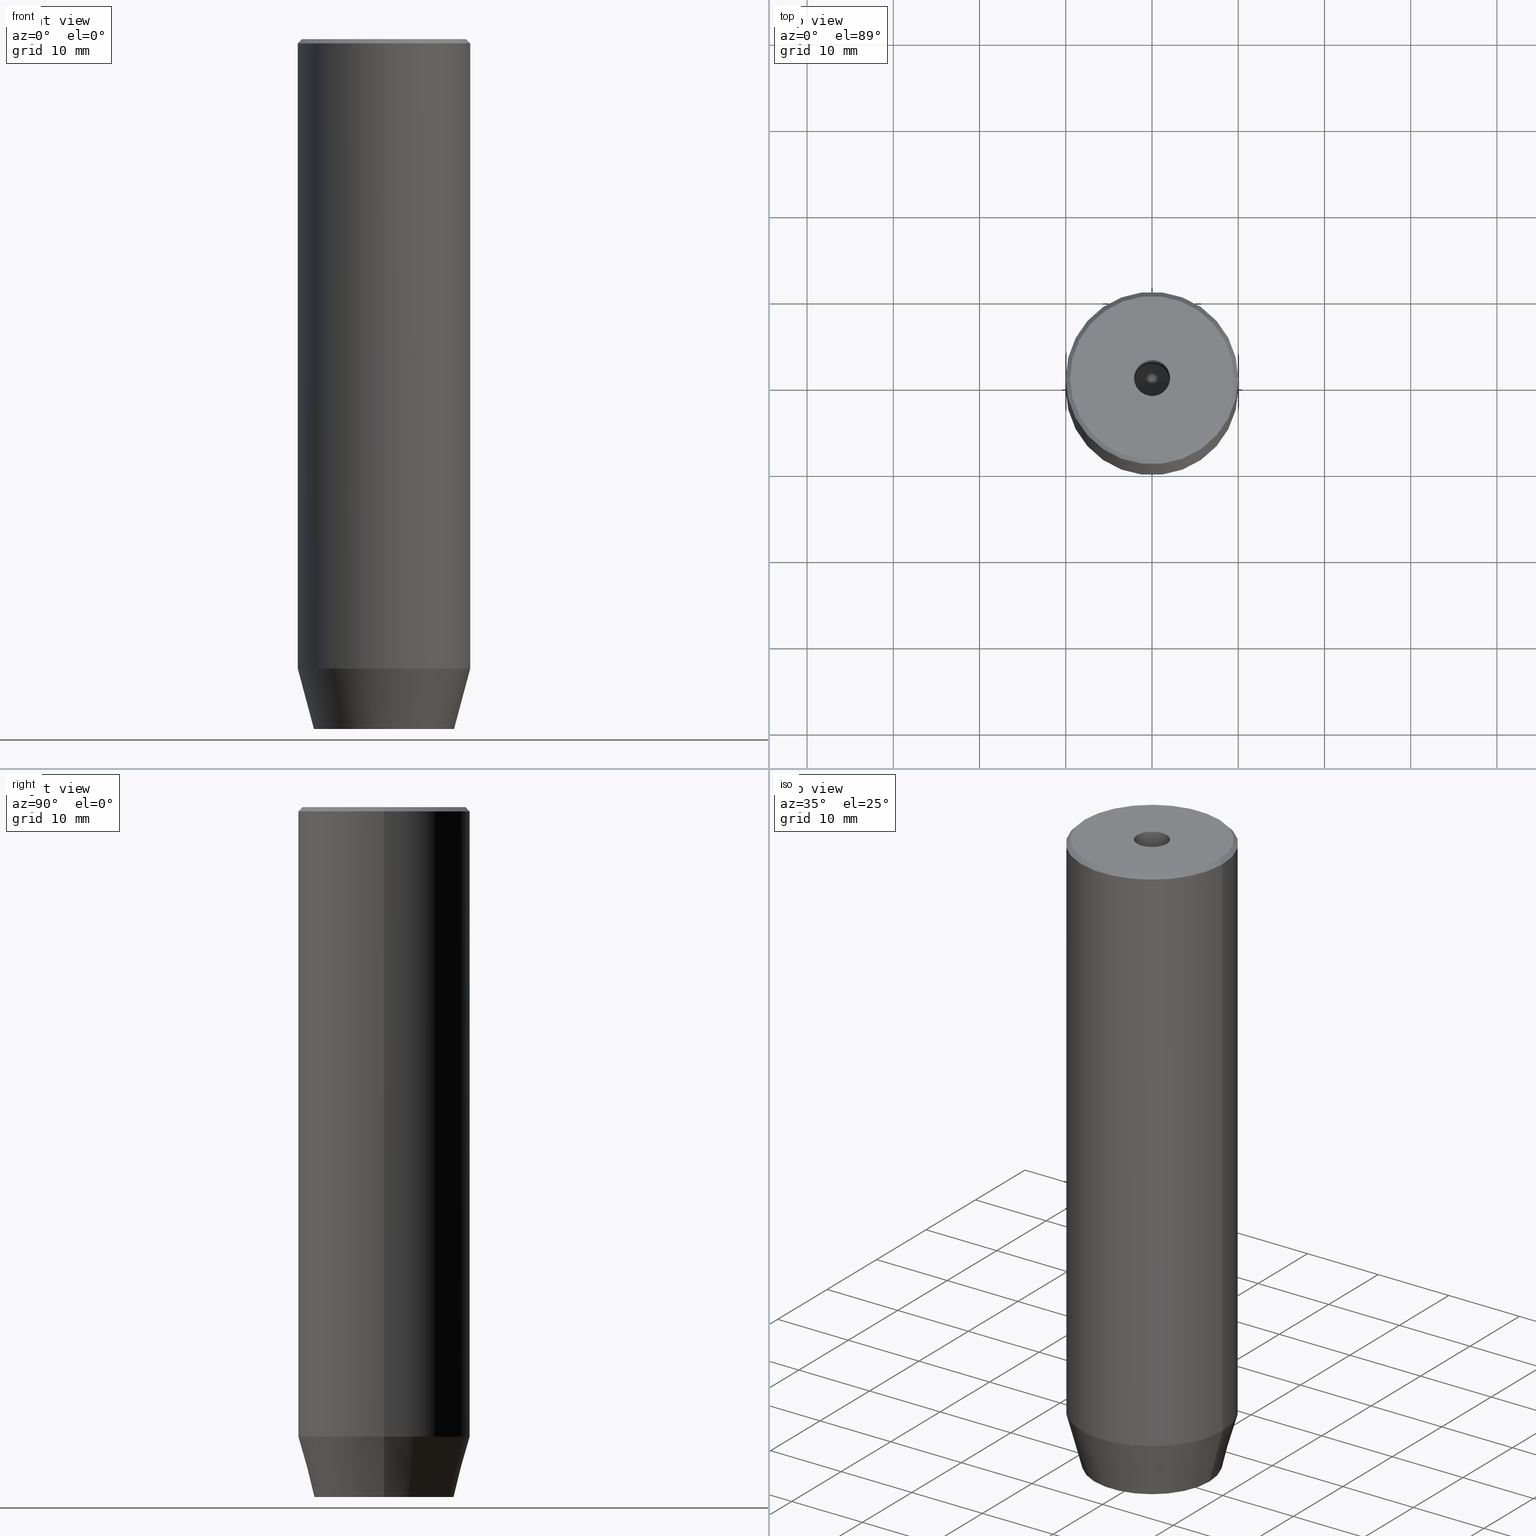
[diagram: canonical four-view strip — front | top / right | iso, engineering-drawing reading convention]
A machine part, canonical four-view strip (front | top / right | iso — engineering-drawing reading convention). The complete STEP part file that produces these views, byte-faithful:
ISO-10303-21;
HEADER;
FILE_DESCRIPTION (( 'STEP AP203' ),
    '1' );
FILE_NAME ('8880.STEP',
    '2024-01-02T19:05:57',
    ( '' ),
    ( '' ),
    'SwSTEP 2.0',
    'SolidWorks 2019',
    '' );
FILE_SCHEMA (( 'CONFIG_CONTROL_DESIGN' ));
ENDSEC;

DATA;
#1 = LINE ( 'NONE', #104, #474 ) ;
#2 = CARTESIAN_POINT ( 'NONE',  ( 0.000000000000000000, 0.000000000000000000, 0.000000000000000000 ) ) ;
#3 = VECTOR ( 'NONE', #266, 1000.000000000000000 ) ;
#4 = DIRECTION ( 'NONE',  ( -0.8660254037844384856, 0.5000000000000002220, 0.000000000000000000 ) ) ;
#5 = LINE ( 'NONE', #93, #3 ) ;
#6 = ORIENTED_EDGE ( 'NONE', *, *, #559, .F. ) ;
#7 = CARTESIAN_POINT ( 'NONE',  ( -10.00000000000000000, 1.224646799147353256E-15, -73.00000000000001421 ) ) ;
#8 = ORIENTED_EDGE ( 'NONE', *, *, #314, .T. ) ;
#9 = CC_DESIGN_DATE_AND_TIME_ASSIGNMENT ( #488, #39, ( #209 ) ) ;
#10 = CARTESIAN_POINT ( 'NONE',  ( 0.000000000000000000, 0.000000000000000000, -0.4999999999999987232 ) ) ;
#11 = ORGANIZATION ( 'NEUR�EN�', 'NEUR�EN�', '' ) ;
#12 = ORIENTED_EDGE ( 'NONE', *, *, #251, .T. ) ;
#13 = PLANE ( 'NONE',  #579 ) ;
#14 = CARTESIAN_POINT ( 'NONE',  ( -2.000000000000000888, -3.464101615137754386, -77.20000000000001705 ) ) ;
#15 = CC_DESIGN_PERSON_AND_ORGANIZATION_ASSIGNMENT ( #220, #407, ( #201 ) ) ;
#16 = CARTESIAN_POINT ( 'NONE',  ( -4.000000000000000000, 0.000000000000000000, -77.20000000000001705 ) ) ;
#17 = DATE_AND_TIME ( #460, #449 ) ;
#18 = DIRECTION ( 'NONE',  ( 0.8660254037844387076, 0.5000000000000001110, 0.000000000000000000 ) ) ;
#19 = EDGE_LOOP ( 'NONE', ( #538, #181, #503, #264 ) ) ;
#20 = LINE ( 'NONE', #279, #419 ) ;
#21 = PERSON_AND_ORGANIZATION ( #242, #11 ) ;
#22 = SECURITY_CLASSIFICATION_LEVEL ( 'unclassified' ) ;
#23 = CARTESIAN_POINT ( 'NONE',  ( 10.00000000000000000, 0.000000000000000000, 0.000000000000000000 ) ) ;
#24 = EDGE_CURVE ( 'NONE', #156, #398, #34, .T. ) ;
#25 = PERSON_AND_ORGANIZATION_ROLE ( 'creator' ) ;
#26 = DIRECTION ( 'NONE',  ( -0.000000000000000000, -0.000000000000000000, 1.000000000000000000 ) ) ;
#27 = AXIS2_PLACEMENT_3D ( 'NONE', #131, #547, #167 ) ;
#28 = DIRECTION ( 'NONE',  ( -0.000000000000000000, -0.000000000000000000, 1.000000000000000000 ) ) ;
#29 = ADVANCED_FACE ( 'NONE', ( #479 ), #123, .T. ) ;
#30 = ORIENTED_EDGE ( 'NONE', *, *, #369, .F. ) ;
#31 = ADVANCED_FACE ( 'NONE', ( #530 ), #290, .F. ) ;
#32 = VERTEX_POINT ( 'NONE', #435 ) ;
#33 = EDGE_CURVE ( 'NONE', #274, #35, #428, .T. ) ;
#34 = CIRCLE ( 'NONE', #71, 10.00000000000000000 ) ;
#35 = VERTEX_POINT ( 'NONE', #295 ) ;
#36 = CALENDAR_DATE ( 2024, 2, 1 ) ;
#37 = CARTESIAN_POINT ( 'NONE',  ( 0.000000000000000000, 0.000000000000000000, -25.00000000000000000 ) ) ;
#38 = CARTESIAN_POINT ( 'NONE',  ( -4.000000000000000000, -2.309401076758503368, -77.20000000000001705 ) ) ;
#39 = DATE_TIME_ROLE ( 'classification_date' ) ;
#40 = FACE_OUTER_BOUND ( 'NONE', #341, .T. ) ;
#41 = CC_DESIGN_APPROVAL ( #544, ( #209 ) ) ;
#42 = DIRECTION ( 'NONE',  ( -0.000000000000000000, -0.000000000000000000, 1.000000000000000000 ) ) ;
#43 = CARTESIAN_POINT ( 'NONE',  ( 4.336808689942017736E-16, -4.618802153517006737, -77.20000000000001705 ) ) ;
#44 = FACE_OUTER_BOUND ( 'NONE', #432, .T. ) ;
#45 = CALENDAR_DATE ( 2024, 2, 1 ) ;
#46 = FACE_OUTER_BOUND ( 'NONE', #233, .T. ) ;
#47 = CARTESIAN_POINT ( 'NONE',  ( 10.00000000000000000, 0.000000000000000000, -73.00000000000001421 ) ) ;
#48 = ORIENTED_EDGE ( 'NONE', *, *, #323, .T. ) ;
#49 = VECTOR ( 'NONE', #4, 1000.000000000000114 ) ;
#50 = LINE ( 'NONE', #43, #103 ) ;
#51 = LINE ( 'NONE', #548, #293 ) ;
#52 = CARTESIAN_POINT ( 'NONE',  ( -2.000000000000000000, 3.464101615137754830, -77.20000000000001705 ) ) ;
#53 = PERSON_AND_ORGANIZATION_ROLE ( 'creator' ) ;
#54 = ADVANCED_FACE ( 'NONE', ( #476 ), #452, .F. ) ;
#55 = EDGE_LOOP ( 'NONE', ( #383, #402, #76, #507 ) ) ;
#56 = PERSON_AND_ORGANIZATION_ROLE ( 'design_owner' ) ;
#57 = CARTESIAN_POINT ( 'NONE',  ( -2.099999999999995648, 2.571758278209436040E-16, -25.00000000000000000 ) ) ;
#58 = VERTEX_POINT ( 'NONE', #483 ) ;
#59 = ADVANCED_FACE ( 'NONE', ( #301 ), #491, .T. ) ;
#60 = FACE_OUTER_BOUND ( 'NONE', #144, .T. ) ;
#61 = CARTESIAN_POINT ( 'NONE',  ( 4.000000000000000000, 0.000000000000000000, -77.20000000000001705 ) ) ;
#62 = CARTESIAN_POINT ( 'NONE',  ( -4.000000000000000000, 0.000000000000000000, -77.20000000000001705 ) ) ;
#63 = AXIS2_PLACEMENT_3D ( 'NONE', #529, #475, #468 ) ;
#64 = AXIS2_PLACEMENT_3D ( 'NONE', #354, #490, #405 ) ;
#65 = CC_DESIGN_PERSON_AND_ORGANIZATION_ASSIGNMENT ( #540, #484, ( #209 ) ) ;
#66 = VERTEX_POINT ( 'NONE', #439 ) ;
#67 = DIRECTION ( 'NONE',  ( -0.8660254037844384856, -0.5000000000000002220, 0.000000000000000000 ) ) ;
#68 = ORIENTED_EDGE ( 'NONE', *, *, #334, .F. ) ;
#69 = FACE_OUTER_BOUND ( 'NONE', #311, .T. ) ;
#70 = EDGE_LOOP ( 'NONE', ( #501, #406, #365, #85 ) ) ;
#71 = AXIS2_PLACEMENT_3D ( 'NONE', #125, #130, #390 ) ;
#72 = EDGE_LOOP ( 'NONE', ( #229, #237, #477, #321, #344, #152 ) ) ;
#73 = LINE ( 'NONE', #147, #543 ) ;
#74 = DIRECTION ( 'NONE',  ( 0.000000000000000000, 1.000000000000000000, 0.000000000000000000 ) ) ;
#75 = CARTESIAN_POINT ( 'NONE',  ( -4.000000000000000000, -2.309401076758503368, -77.20000000000001705 ) ) ;
#76 = ORIENTED_EDGE ( 'NONE', *, *, #467, .T. ) ;
#77 = APPROVAL_ROLE ( '' ) ;
#78 = CARTESIAN_POINT ( 'NONE',  ( 0.000000000000000000, 0.000000000000000000, -25.00000000000000000 ) ) ;
#79 = EDGE_CURVE ( 'NONE', #463, #272, #583, .T. ) ;
#80 = CARTESIAN_POINT ( 'NONE',  ( 0.000000000000000000, 0.000000000000000000, -1.990051048614449116E-16 ) ) ;
#81 = CYLINDRICAL_SURFACE ( 'NONE', #545, 2.099999999999996980 ) ;
#82 = ORIENTED_EDGE ( 'NONE', *, *, #109, .F. ) ;
#83 = DIRECTION ( 'NONE',  ( -0.8660254037844385966, 0.5000000000000001110, 0.000000000000000000 ) ) ;
#84 = APPROVAL_PERSON_ORGANIZATION ( #278, #382, #77 ) ;
#85 = ORIENTED_EDGE ( 'NONE', *, *, #571, .T. ) ;
#86 = DIRECTION ( 'NONE',  ( -1.000000000000000000, 0.000000000000000000, -0.000000000000000000 ) ) ;
#87 = CARTESIAN_POINT ( 'NONE',  ( 0.000000000000000000, 0.000000000000000000, -25.00000000000000000 ) ) ;
#88 = EDGE_LOOP ( 'NONE', ( #328, #106, #517 ) ) ;
#89 = EDGE_CURVE ( 'NONE', #409, #325, #537, .T. ) ;
#90 = ADVANCED_FACE ( 'NONE', ( #69 ), #368, .F. ) ;
#91 = CARTESIAN_POINT ( 'NONE',  ( 0.000000000000000000, 0.000000000000000000, -73.00000000000001421 ) ) ;
#92 = CIRCLE ( 'NONE', #221, 10.00000000000000000 ) ;
#93 = CARTESIAN_POINT ( 'NONE',  ( 0.000000000000000000, 4.618802153517006737, -77.20000000000001705 ) ) ;
#94 = CC_DESIGN_APPROVAL ( #150, ( #201 ) ) ;
#95 = EDGE_LOOP ( 'NONE', ( #319, #257, #318, #68, #6, #404 ) ) ;
#96 = DIRECTION ( 'NONE',  ( 0.000000000000000000, -1.000000000000000000, 0.000000000000000000 ) ) ;
#97 = CARTESIAN_POINT ( 'NONE',  ( 0.000000000000000000, 0.000000000000000000, 0.000000000000000000 ) ) ;
#98 = VECTOR ( 'NONE', #515, 1000.000000000000000 ) ;
#99 = EDGE_CURVE ( 'NONE', #161, #214, #143, .T. ) ;
#100 = EDGE_LOOP ( 'NONE', ( #241, #565, #30, #151 ) ) ;
#101 = DIRECTION ( 'NONE',  ( -0.000000000000000000, -0.000000000000000000, -1.000000000000000000 ) ) ;
#102 = MECHANICAL_CONTEXT ( 'NONE', #339, 'mechanical' ) ;
#103 = VECTOR ( 'NONE', #101, 1000.000000000000000 ) ;
#104 = CARTESIAN_POINT ( 'NONE',  ( 4.000000000000000000, 0.000000000000000000, -80.00000000000001421 ) ) ;
#105 = EDGE_CURVE ( 'NONE', #32, #379, #364, .T. ) ;
#106 = ORIENTED_EDGE ( 'NONE', *, *, #427, .T. ) ;
#107 = DIRECTION ( 'NONE',  ( 1.000000000000000000, 0.000000000000000000, 0.000000000000000000 ) ) ;
#108 = FACE_OUTER_BOUND ( 'NONE', #204, .T. ) ;
#109 = EDGE_CURVE ( 'NONE', #489, #32, #20, .T. ) ;
#110 = CARTESIAN_POINT ( 'NONE',  ( 4.000000000000000000, 0.000000000000000000, -77.20000000000001705 ) ) ;
#111 = AXIS2_PLACEMENT_3D ( 'NONE', #573, #120, #373 ) ;
#112 = VECTOR ( 'NONE', #219, 1000.000000000000114 ) ;
#113 = VECTOR ( 'NONE', #478, 1000.000000000000000 ) ;
#114 = ORIENTED_EDGE ( 'NONE', *, *, #142, .F. ) ;
#115 = EDGE_CURVE ( 'NONE', #453, #58, #324, .T. ) ;
#116 = CARTESIAN_POINT ( 'NONE',  ( -2.000000000000000888, -3.464101615137754386, -77.20000000000001705 ) ) ;
#117 = VECTOR ( 'NONE', #165, 999.9999999999998863 ) ;
#118 = ADVANCED_FACE ( 'NONE', ( #561 ), #415, .F. ) ;
#119 = DATE_TIME_ROLE ( 'creation_date' ) ;
#120 = DIRECTION ( 'NONE',  ( 0.000000000000000000, 0.000000000000000000, -1.000000000000000000 ) ) ;
#121 = DIRECTION ( 'NONE',  ( 1.000000000000000000, 0.000000000000000000, 0.000000000000000000 ) ) ;
#122 = ADVANCED_FACE ( 'NONE', ( #380 ), #13, .T. ) ;
#123 = CYLINDRICAL_SURFACE ( 'NONE', #174, 10.00000000000000000 ) ;
#124 = DIRECTION ( 'NONE',  ( -0.8571673007021108903, 1.049727191138616847E-16, 0.5150380749100565980 ) ) ;
#125 = CARTESIAN_POINT ( 'NONE',  ( 0.000000000000000000, 0.000000000000000000, -73.00000000000001421 ) ) ;
#126 = CIRCLE ( 'NONE', #111, 10.00000000000000000 ) ;
#127 = ORIENTED_EDGE ( 'NONE', *, *, #571, .F. ) ;
#128 = AXIS2_PLACEMENT_3D ( 'NONE', #508, #516, #121 ) ;
#129 = DIRECTION ( 'NONE',  ( -0.000000000000000000, -0.000000000000000000, 1.000000000000000000 ) ) ;
#130 = DIRECTION ( 'NONE',  ( -0.000000000000000000, -0.000000000000000000, 1.000000000000000000 ) ) ;
#131 = CARTESIAN_POINT ( 'NONE',  ( 0.000000000000000000, 0.000000000000000000, 0.000000000000000000 ) ) ;
#132 = DIRECTION ( 'NONE',  ( 0.8571673007021108903, 0.000000000000000000, 0.5150380749100565980 ) ) ;
#133 = CARTESIAN_POINT ( 'NONE',  ( -9.500000000000015987, 0.000000000000000000, 0.000000000000000000 ) ) ;
#134 = VECTOR ( 'NONE', #570, 1000.000000000000000 ) ;
#135 = ORIENTED_EDGE ( 'NONE', *, *, #256, .F. ) ;
#136 = PRODUCT_RELATED_PRODUCT_CATEGORY ( 'detail', '', ( #533 ) ) ;
#137 = EDGE_LOOP ( 'NONE', ( #444, #564, #526, #581 ) ) ;
#138 = AXIS2_PLACEMENT_3D ( 'NONE', #116, #226, #566 ) ;
#139 = DIRECTION ( 'NONE',  ( 0.8660254037844385966, -0.5000000000000001110, 0.000000000000000000 ) ) ;
#140 = DIRECTION ( 'NONE',  ( 0.2588190451025206840, 0.000000000000000000, 0.9659258262890683122 ) ) ;
#141 = ORIENTED_EDGE ( 'NONE', *, *, #185, .F. ) ;
#142 = EDGE_CURVE ( 'NONE', #379, #161, #188, .T. ) ;
#143 = LINE ( 'NONE', #376, #281 ) ;
#144 = EDGE_LOOP ( 'NONE', ( #560, #178, #205, #381 ) ) ;
#145 = CARTESIAN_POINT ( 'NONE',  ( 0.000000000000000000, 0.000000000000000000, -77.20000000000001705 ) ) ;
#146 = VECTOR ( 'NONE', #208, 1000.000000000000000 ) ;
#147 = CARTESIAN_POINT ( 'NONE',  ( 4.000000000000000000, -2.309401076758502480, -77.20000000000001705 ) ) ;
#148 = DIRECTION ( 'NONE',  ( 0.8660254037844384856, 0.5000000000000002220, 0.000000000000000000 ) ) ;
#149 = ORIENTED_EDGE ( 'NONE', *, *, #289, .T. ) ;
#150 = APPROVAL ( #196, 'NEUR�EN�' ) ;
#151 = ORIENTED_EDGE ( 'NONE', *, *, #323, .F. ) ;
#152 = ORIENTED_EDGE ( 'NONE', *, *, #154, .T. ) ;
#153 = APPROVAL_DATE_TIME ( #386, #150 ) ;
#154 = EDGE_CURVE ( 'NONE', #463, #489, #276, .T. ) ;
#155 = LINE ( 'NONE', #567, #134 ) ;
#156 = VERTEX_POINT ( 'NONE', #230 ) ;
#157 = CARTESIAN_POINT ( 'NONE',  ( -4.000000000000000000, 2.309401076758503368, -77.20000000000001705 ) ) ;
#158 = ORIENTED_EDGE ( 'NONE', *, *, #408, .F. ) ;
#159 = VECTOR ( 'NONE', #180, 999.9999999999998863 ) ;
#160 = DIRECTION ( 'NONE',  ( 1.000000000000000000, 0.000000000000000000, 0.000000000000000000 ) ) ;
#161 = VERTEX_POINT ( 'NONE', #283 ) ;
#162 = ORIENTED_EDGE ( 'NONE', *, *, #244, .T. ) ;
#163 = CIRCLE ( 'NONE', #179, 2.099999999999995648 ) ;
#164 = DIRECTION ( 'NONE',  ( -0.000000000000000000, -0.000000000000000000, 1.000000000000000000 ) ) ;
#165 = DIRECTION ( 'NONE',  ( -0.7071067811865376918, 0.000000000000000000, -0.7071067811865574537 ) ) ;
#166 = PLANE ( 'NONE',  #582 ) ;
#167 = DIRECTION ( 'NONE',  ( -1.000000000000000000, 0.000000000000000000, 0.000000000000000000 ) ) ;
#168 = LINE ( 'NONE', #312, #49 ) ;
#169 = CARTESIAN_POINT ( 'NONE',  ( 4.000000000000000000, 2.309401076758503368, -80.00000000000001421 ) ) ;
#170 = CONICAL_SURFACE ( 'NONE', #240, 10.00000000000000000, 0.2617993877991493523 ) ;
#171 = CARTESIAN_POINT ( 'NONE',  ( 10.00000000000000000, 0.000000000000000000, -73.00000000000001421 ) ) ;
#172 = DIRECTION ( 'NONE',  ( 0.000000000000000000, 0.000000000000000000, -1.000000000000000000 ) ) ;
#173 = APPLICATION_PROTOCOL_DEFINITION ( 'international standard', 'config_control_design', 1994, #339 ) ;
#174 = AXIS2_PLACEMENT_3D ( 'NONE', #333, #28, #234 ) ;
#175 = FACE_BOUND ( 'NONE', #411, .T. ) ;
#176 = CARTESIAN_POINT ( 'NONE',  ( 2.000000000000000444, 3.464101615137754386, -80.00000000000001421 ) ) ;
#177 = ADVANCED_FACE ( 'NONE', ( #466 ), #207, .F. ) ;
#178 = ORIENTED_EDGE ( 'NONE', *, *, #412, .F. ) ;
#179 = AXIS2_PLACEMENT_3D ( 'NONE', #370, #359, #504 ) ;
#180 = DIRECTION ( 'NONE',  ( 0.8660254037844387076, 0.5000000000000001110, 0.000000000000000000 ) ) ;
#181 = ORIENTED_EDGE ( 'NONE', *, *, #387, .F. ) ;
#182 = FACE_OUTER_BOUND ( 'NONE', #270, .T. ) ;
#183 = CARTESIAN_POINT ( 'NONE',  ( 2.099999999999998757, 0.000000000000000000, -1.990051048614449116E-16 ) ) ;
#184 = ORIENTED_EDGE ( 'NONE', *, *, #185, .T. ) ;
#185 = EDGE_CURVE ( 'NONE', #429, #409, #554, .T. ) ;
#186 = EDGE_CURVE ( 'NONE', #211, #553, #282, .T. ) ;
#187 = APPROVAL_STATUS ( 'not_yet_approved' ) ;
#188 = LINE ( 'NONE', #110, #550 ) ;
#189 = CARTESIAN_POINT ( 'NONE',  ( -4.000000000000000000, 2.309401076758503368, -80.00000000000001421 ) ) ;
#190 = EDGE_CURVE ( 'NONE', #384, #325, #126, .T. ) ;
#191 = VECTOR ( 'NONE', #139, 1000.000000000000000 ) ;
#192 = APPROVAL_PERSON_ORGANIZATION ( #21, #150, #335 ) ;
#193 = ORIENTED_EDGE ( 'NONE', *, *, #302, .T. ) ;
#194 = CALENDAR_DATE ( 2024, 2, 1 ) ;
#195 = CARTESIAN_POINT ( 'NONE',  ( 0.000000000000000000, 0.000000000000000000, -80.00000000000001421 ) ) ;
#196 = APPROVAL_STATUS ( 'not_yet_approved' ) ;
#197 = EDGE_CURVE ( 'NONE', #272, #453, #155, .T. ) ;
#198 = ORIENTED_EDGE ( 'NONE', *, *, #154, .F. ) ;
#199 = CALENDAR_DATE ( 2024, 2, 1 ) ;
#200 = CARTESIAN_POINT ( 'NONE',  ( -2.099999999999995648, 2.571758278209436040E-16, -25.00000000000000000 ) ) ;
#201 = PRODUCT_DEFINITION_FORMATION_WITH_SPECIFIED_SOURCE ( 'LIBOVOLN�', '', #533, .NOT_KNOWN. ) ;
#202 = ORIENTED_EDGE ( 'NONE', *, *, #197, .T. ) ;
#203 = CARTESIAN_POINT ( 'NONE',  ( 9.500000000000015987, 1.163414459189987457E-15, 0.000000000000000000 ) ) ;
#204 = EDGE_LOOP ( 'NONE', ( #202, #458, #198, #420 ) ) ;
#205 = ORIENTED_EDGE ( 'NONE', *, *, #99, .F. ) ;
#206 = EDGE_CURVE ( 'NONE', #161, #574, #73, .T. ) ;
#207 = CONICAL_SURFACE ( 'NONE', #456, 2.099999999999995648, 1.029744258676651647 ) ;
#208 = DIRECTION ( 'NONE',  ( -0.000000000000000000, -0.000000000000000000, -1.000000000000000000 ) ) ;
#209 = SECURITY_CLASSIFICATION ( '', '', #22 ) ;
#210 = LOCAL_TIME ( 20, 5, 57.00000000000000000, #519 ) ;
#211 = VERTEX_POINT ( 'NONE', #259 ) ;
#212 = LINE ( 'NONE', #47, #518 ) ;
#213 = ADVANCED_FACE ( 'NONE', ( #446 ), #275, .T. ) ;
#214 = VERTEX_POINT ( 'NONE', #396 ) ;
#215 = DIRECTION ( 'NONE',  ( -0.000000000000000000, -0.000000000000000000, 1.000000000000000000 ) ) ;
#216 = DIRECTION ( 'NONE',  ( -0.000000000000000000, -0.000000000000000000, -1.000000000000000000 ) ) ;
#217 = AXIS2_PLACEMENT_3D ( 'NONE', #52, #400, #395 ) ;
#218 = CIRCLE ( 'NONE', #558, 2.099999999999995648 ) ;
#219 = DIRECTION ( 'NONE',  ( -0.8660254037844384856, 0.5000000000000002220, 0.000000000000000000 ) ) ;
#220 = PERSON_AND_ORGANIZATION ( #242, #11 ) ;
#221 = AXIS2_PLACEMENT_3D ( 'NONE', #316, #356, #224 ) ;
#222 = DIRECTION ( 'NONE',  ( -0.000000000000000000, 0.000000000000000000, -1.000000000000000000 ) ) ;
#223 = LINE ( 'NONE', #297, #113 ) ;
#224 = DIRECTION ( 'NONE',  ( 1.000000000000000000, 0.000000000000000000, 0.000000000000000000 ) ) ;
#225 = ADVANCED_FACE ( 'NONE', ( #44 ), #348, .T. ) ;
#226 = DIRECTION ( 'NONE',  ( -0.5000000000000003331, -0.8660254037844385966, 0.000000000000000000 ) ) ;
#227 = CLOSED_SHELL ( 'NONE', ( #385, #54, #438, #59, #225, #480, #403, #29, #510, #213, #231, #424, #118, #304, #90, #31, #122, #177, #585 ) ) ;
#228 = EDGE_CURVE ( 'NONE', #156, #325, #587, .T. ) ;
#229 = ORIENTED_EDGE ( 'NONE', *, *, #109, .T. ) ;
#230 = CARTESIAN_POINT ( 'NONE',  ( -10.00000000000000000, 1.224646799147353256E-15, -73.00000000000001421 ) ) ;
#231 = ADVANCED_FACE ( 'NONE', ( #46 ), #350, .F. ) ;
#232 = AXIS2_PLACEMENT_3D ( 'NONE', #361, #496, #107 ) ;
#233 = EDGE_LOOP ( 'NONE', ( #575, #127, #82, #162 ) ) ;
#234 = DIRECTION ( 'NONE',  ( 1.000000000000000000, 0.000000000000000000, 0.000000000000000000 ) ) ;
#235 = DIRECTION ( 'NONE',  ( -0.000000000000000000, -0.000000000000000000, 1.000000000000000000 ) ) ;
#236 = PLANE ( 'NONE',  #277 ) ;
#237 = ORIENTED_EDGE ( 'NONE', *, *, #105, .T. ) ;
#238 = DIRECTION ( 'NONE',  ( 1.000000000000000000, 0.000000000000000000, 0.000000000000000000 ) ) ;
#239 = DIRECTION ( 'NONE',  ( -0.000000000000000000, -0.000000000000000000, 1.000000000000000000 ) ) ;
#240 = AXIS2_PLACEMENT_3D ( 'NONE', #523, #26, #238 ) ;
#241 = ORIENTED_EDGE ( 'NONE', *, *, #186, .T. ) ;
#242 = PERSON ( 'NEUR�EN�', 'NEUR�EN�', 'NEUR�EN�', ('NEUR�EN�'), ('NEUR�EN�'), ('NEUR�EN�') ) ;
#243 = ORIENTED_EDGE ( 'NONE', *, *, #513, .T. ) ;
#244 = EDGE_CURVE ( 'NONE', #489, #453, #584, .T. ) ;
#245 = DIRECTION ( 'NONE',  ( 0.7071067811865376918, 8.659560562354813296E-17, -0.7071067811865574537 ) ) ;
#246 = DIRECTION ( 'NONE',  ( -0.000000000000000000, -0.000000000000000000, 1.000000000000000000 ) ) ;
#247 = CC_DESIGN_PERSON_AND_ORGANIZATION_ASSIGNMENT ( #269, #56, ( #533 ) ) ;
#248 = CARTESIAN_POINT ( 'NONE',  ( 0.000000000000000000, 0.000000000000000000, 0.000000000000000000 ) ) ;
#249 = ORIENTED_EDGE ( 'NONE', *, *, #186, .F. ) ;
#250 = CARTESIAN_POINT ( 'NONE',  ( 4.000000000000000000, 2.309401076758503368, -77.20000000000001705 ) ) ;
#251 = EDGE_CURVE ( 'NONE', #418, #272, #168, .T. ) ;
#252 = CIRCLE ( 'NONE', #336, 8.124355652982140796 ) ;
#253 = LOCAL_TIME ( 20, 5, 57.00000000000000000, #421 ) ;
#254 = ORIENTED_EDGE ( 'NONE', *, *, #427, .F. ) ;
#255 = CARTESIAN_POINT ( 'NONE',  ( -9.500000000000015987, 0.000000000000000000, 0.000000000000000000 ) ) ;
#256 = EDGE_CURVE ( 'NONE', #214, #463, #546, .T. ) ;
#257 = ORIENTED_EDGE ( 'NONE', *, *, #197, .F. ) ;
#258 = FACE_OUTER_BOUND ( 'NONE', #286, .T. ) ;
#259 = CARTESIAN_POINT ( 'NONE',  ( 8.124355652982140796, 0.000000000000000000, -80.00000000000001421 ) ) ;
#260 = APPROVAL_DATE_TIME ( #531, #544 ) ;
#261 = DIRECTION ( 'NONE',  ( -1.000000000000000000, 0.000000000000000000, 0.000000000000000000 ) ) ;
#262 = VECTOR ( 'NONE', #541, 1000.000000000000000 ) ;
#263 = AXIS2_PLACEMENT_3D ( 'NONE', #509, #305, #355 ) ;
#264 = ORIENTED_EDGE ( 'NONE', *, *, #33, .T. ) ;
#265 = PERSON_AND_ORGANIZATION ( #242, #11 ) ;
#266 = DIRECTION ( 'NONE',  ( -0.000000000000000000, -0.000000000000000000, -1.000000000000000000 ) ) ;
#267 = LOCAL_TIME ( 20, 5, 57.00000000000000000, #392 ) ;
#268 = DIRECTION ( 'NONE',  ( -0.8660254037844384856, -0.5000000000000002220, 0.000000000000000000 ) ) ;
#269 = PERSON_AND_ORGANIZATION ( #242, #11 ) ;
#270 = EDGE_LOOP ( 'NONE', ( #141, #465, #499, #338 ) ) ;
#271 = DIRECTION ( 'NONE',  ( 1.000000000000000000, 0.000000000000000000, 0.000000000000000000 ) ) ;
#272 = VERTEX_POINT ( 'NONE', #320 ) ;
#273 = AXIS2_PLACEMENT_3D ( 'NONE', #87, #246, #437 ) ;
#274 = VERTEX_POINT ( 'NONE', #183 ) ;
#275 = CONICAL_SURFACE ( 'NONE', #27, 9.500000000000015987, 0.7853981633974344012 ) ;
#276 = LINE ( 'NONE', #16, #375 ) ;
#277 = AXIS2_PLACEMENT_3D ( 'NONE', #482, #430, #86 ) ;
#278 = PERSON_AND_ORGANIZATION ( #242, #11 ) ;
#279 = CARTESIAN_POINT ( 'NONE',  ( -2.000000000000000000, 3.464101615137754830, -77.20000000000001705 ) ) ;
#280 = DIRECTION ( 'NONE',  ( 0.000000000000000000, -1.000000000000000000, 0.000000000000000000 ) ) ;
#281 = VECTOR ( 'NONE', #67, 1000.000000000000114 ) ;
#282 = CIRCLE ( 'NONE', #63, 8.124355652982140796 ) ;
#283 = CARTESIAN_POINT ( 'NONE',  ( 4.000000000000000000, -2.309401076758502480, -77.20000000000001705 ) ) ;
#284 = CC_DESIGN_SECURITY_CLASSIFICATION ( #209, ( #201 ) ) ;
#285 = VERTEX_POINT ( 'NONE', #317 ) ;
#286 = EDGE_LOOP ( 'NONE', ( #193, #184 ) ) ;
#287 = PERSON_AND_ORGANIZATION ( #242, #11 ) ;
#288 = FACE_BOUND ( 'NONE', #95, .T. ) ;
#289 = EDGE_CURVE ( 'NONE', #291, #285, #163, .T. ) ;
#290 = PLANE ( 'NONE',  #298 ) ;
#291 = VERTEX_POINT ( 'NONE', #57 ) ;
#292 = DIRECTION ( 'NONE',  ( -1.000000000000000000, 0.000000000000000000, 0.000000000000000000 ) ) ;
#293 = VECTOR ( 'NONE', #494, 1000.000000000000000 ) ;
#294 = EDGE_CURVE ( 'NONE', #58, #330, #551, .T. ) ;
#295 = CARTESIAN_POINT ( 'NONE',  ( -2.099999999999998757, 2.571758278209440478E-16, -1.990051048614449116E-16 ) ) ;
#296 = ORIENTED_EDGE ( 'NONE', *, *, #559, .T. ) ;
#297 = CARTESIAN_POINT ( 'NONE',  ( -2.099999999999996980, 2.571758278209438013E-16, 0.000000000000000000 ) ) ;
#298 = AXIS2_PLACEMENT_3D ( 'NONE', #469, #472, #83 ) ;
#299 = CARTESIAN_POINT ( 'NONE',  ( 0.000000000000000000, 0.000000000000000000, 0.000000000000000000 ) ) ;
#300 = DIRECTION ( 'NONE',  ( 0.000000000000000000, 0.000000000000000000, 1.000000000000000000 ) ) ;
#301 = FACE_OUTER_BOUND ( 'NONE', #100, .T. ) ;
#302 = EDGE_CURVE ( 'NONE', #409, #429, #413, .T. ) ;
#303 = DIRECTION ( 'NONE',  ( 0.000000000000000000, -0.000000000000000000, 1.000000000000000000 ) ) ;
#304 = ADVANCED_FACE ( 'NONE', ( #60 ), #459, .F. ) ;
#305 = DIRECTION ( 'NONE',  ( -0.000000000000000000, -0.000000000000000000, 1.000000000000000000 ) ) ;
#306 = AXIS2_PLACEMENT_3D ( 'NONE', #527, #235, #534 ) ;
#307 = ORIENTED_EDGE ( 'NONE', *, *, #79, .F. ) ;
#308 = CARTESIAN_POINT ( 'NONE',  ( -8.124355652982140796, 1.109796706851640753E-15, -80.00000000000001421 ) ) ;
#309 =( NAMED_UNIT ( * ) SI_UNIT ( $, .STERADIAN. ) SOLID_ANGLE_UNIT ( ) );
#310 = CARTESIAN_POINT ( 'NONE',  ( -4.000000000000000000, 2.309401076758503368, -77.20000000000001705 ) ) ;
#311 = EDGE_LOOP ( 'NONE', ( #296, #313, #114, #522 ) ) ;
#312 = CARTESIAN_POINT ( 'NONE',  ( -2.000000000000000888, -3.464101615137754386, -80.00000000000001421 ) ) ;
#313 = ORIENTED_EDGE ( 'NONE', *, *, #206, .F. ) ;
#314 = EDGE_CURVE ( 'NONE', #35, #274, #532, .T. ) ;
#315 = AXIS2_PLACEMENT_3D ( 'NONE', #2, #172, #261 ) ;
#316 = CARTESIAN_POINT ( 'NONE',  ( 0.000000000000000000, 0.000000000000000000, -73.00000000000001421 ) ) ;
#317 = CARTESIAN_POINT ( 'NONE',  ( 2.099999999999995648, 0.000000000000000000, -25.00000000000000000 ) ) ;
#318 = ORIENTED_EDGE ( 'NONE', *, *, #251, .F. ) ;
#319 = ORIENTED_EDGE ( 'NONE', *, *, #115, .F. ) ;
#320 = CARTESIAN_POINT ( 'NONE',  ( -4.000000000000000000, -2.309401076758503368, -80.00000000000001421 ) ) ;
#321 = ORIENTED_EDGE ( 'NONE', *, *, #99, .T. ) ;
#322 = AXIS2_PLACEMENT_3D ( 'NONE', #91, #393, #346 ) ;
#323 = EDGE_CURVE ( 'NONE', #211, #398, #212, .T. ) ;
#324 = LINE ( 'NONE', #512, #159 ) ;
#325 = VERTEX_POINT ( 'NONE', #487 ) ;
#326 = UNCERTAINTY_MEASURE_WITH_UNIT (LENGTH_MEASURE( 1.000000000000000082E-05 ), #563, 'distance_accuracy_value', 'NONE');
#327 =( GEOMETRIC_REPRESENTATION_CONTEXT ( 3 ) GLOBAL_UNCERTAINTY_ASSIGNED_CONTEXT ( ( #326 ) ) GLOBAL_UNIT_ASSIGNED_CONTEXT ( ( #563, #431, #309 ) ) REPRESENTATION_CONTEXT ( 'NONE', 'WORKASPACE' ) );
#328 = ORIENTED_EDGE ( 'NONE', *, *, #513, .F. ) ;
#329 = APPLICATION_PROTOCOL_DEFINITION ( 'international standard', 'config_control_design', 1994, #552 ) ;
#330 = VERTEX_POINT ( 'NONE', #169 ) ;
#331 = APPROVAL_DATE_TIME ( #17, #382 ) ;
#332 = CARTESIAN_POINT ( 'NONE',  ( 2.000000000000000444, 3.464101615137754386, -77.20000000000001705 ) ) ;
#333 = CARTESIAN_POINT ( 'NONE',  ( 0.000000000000000000, 0.000000000000000000, 0.000000000000000000 ) ) ;
#334 = EDGE_CURVE ( 'NONE', #574, #418, #443, .T. ) ;
#335 = APPROVAL_ROLE ( '' ) ;
#336 = AXIS2_PLACEMENT_3D ( 'NONE', #195, #461, #498 ) ;
#337 = VECTOR ( 'NONE', #455, 1000.000000000000000 ) ;
#338 = ORIENTED_EDGE ( 'NONE', *, *, #89, .F. ) ;
#339 = APPLICATION_CONTEXT ( 'configuration controlled 3d designs of mechanical parts and assemblies' ) ;
#340 = CARTESIAN_POINT ( 'NONE',  ( 10.00000000000000000, 0.000000000000000000, -0.4999999999999987232 ) ) ;
#341 = EDGE_LOOP ( 'NONE', ( #158, #572, #48, #425 ) ) ;
#342 = DIRECTION ( 'NONE',  ( 1.000000000000000000, 0.000000000000000000, 0.000000000000000000 ) ) ;
#343 = VECTOR ( 'NONE', #268, 1000.000000000000114 ) ;
#344 = ORIENTED_EDGE ( 'NONE', *, *, #256, .T. ) ;
#345 = ORIENTED_EDGE ( 'NONE', *, *, #362, .F. ) ;
#346 = DIRECTION ( 'NONE',  ( 1.000000000000000000, 0.000000000000000000, 0.000000000000000000 ) ) ;
#347 = ORIENTED_EDGE ( 'NONE', *, *, #369, .T. ) ;
#348 = CYLINDRICAL_SURFACE ( 'NONE', #351, 10.00000000000000000 ) ;
#349 = DIRECTION ( 'NONE',  ( 1.000000000000000000, 0.000000000000000000, 0.000000000000000000 ) ) ;
#350 = PLANE ( 'NONE',  #217 ) ;
#351 = AXIS2_PLACEMENT_3D ( 'NONE', #299, #42, #448 ) ;
#352 = VECTOR ( 'NONE', #132, 1000.000000000000114 ) ;
#353 = EDGE_LOOP ( 'NONE', ( #249, #345 ) ) ;
#354 = CARTESIAN_POINT ( 'NONE',  ( 0.000000000000000000, 0.000000000000000000, 0.000000000000000000 ) ) ;
#355 = DIRECTION ( 'NONE',  ( 1.000000000000000000, 0.000000000000000000, 0.000000000000000000 ) ) ;
#356 = DIRECTION ( 'NONE',  ( -0.000000000000000000, -0.000000000000000000, 1.000000000000000000 ) ) ;
#357 = CARTESIAN_POINT ( 'NONE',  ( 2.000000000000000888, -3.464101615137754386, -80.00000000000001421 ) ) ;
#358 = CC_DESIGN_PERSON_AND_ORGANIZATION_ASSIGNMENT ( #265, #53, ( #201 ) ) ;
#359 = DIRECTION ( 'NONE',  ( -0.000000000000000000, -0.000000000000000000, 1.000000000000000000 ) ) ;
#360 = CARTESIAN_POINT ( 'NONE',  ( 4.336808689942017736E-16, -4.618802153517006737, -80.00000000000001421 ) ) ;
#361 = CARTESIAN_POINT ( 'NONE',  ( 0.000000000000000000, 0.000000000000000000, 0.000000000000000000 ) ) ;
#362 = EDGE_CURVE ( 'NONE', #553, #211, #252, .T. ) ;
#363 = EDGE_LOOP ( 'NONE', ( #12, #307, #135, #577 ) ) ;
#364 = LINE ( 'NONE', #332, #98 ) ;
#365 = ORIENTED_EDGE ( 'NONE', *, *, #105, .F. ) ;
#366 = ADVANCED_BREP_SHAPE_REPRESENTATION ( '8880', ( #576, #64 ), #327 ) ;
#367 = CC_DESIGN_DATE_AND_TIME_ASSIGNMENT ( #514, #119, ( #464 ) ) ;
#368 = PLANE ( 'NONE',  #372 ) ;
#369 = EDGE_CURVE ( 'NONE', #398, #156, #92, .T. ) ;
#370 = CARTESIAN_POINT ( 'NONE',  ( 0.000000000000000000, 0.000000000000000000, -25.00000000000000000 ) ) ;
#371 = ORIENTED_EDGE ( 'NONE', *, *, #441, .F. ) ;
#372 = AXIS2_PLACEMENT_3D ( 'NONE', #61, #410, #222 ) ;
#373 = DIRECTION ( 'NONE',  ( 1.000000000000000000, 0.000000000000000000, 0.000000000000000000 ) ) ;
#374 = CARTESIAN_POINT ( 'NONE',  ( 2.000000000000000888, -3.464101615137754386, -77.20000000000001705 ) ) ;
#375 = VECTOR ( 'NONE', #74, 1000.000000000000000 ) ;
#376 = CARTESIAN_POINT ( 'NONE',  ( 2.000000000000000888, -3.464101615137754386, -77.20000000000001705 ) ) ;
#377 = VECTOR ( 'NONE', #216, 1000.000000000000000 ) ;
#378 = LINE ( 'NONE', #397, #377 ) ;
#379 = VERTEX_POINT ( 'NONE', #250 ) ;
#380 = FACE_OUTER_BOUND ( 'NONE', #72, .T. ) ;
#381 = ORIENTED_EDGE ( 'NONE', *, *, #206, .T. ) ;
#382 = APPROVAL ( #187, 'NEUR�EN�' ) ;
#383 = ORIENTED_EDGE ( 'NONE', *, *, #228, .F. ) ;
#384 = VERTEX_POINT ( 'NONE', #340 ) ;
#385 = ADVANCED_FACE ( 'NONE', ( #524 ), #81, .F. ) ;
#386 = DATE_AND_TIME ( #199, #210 ) ;
#387 = EDGE_CURVE ( 'NONE', #285, #291, #218, .T. ) ;
#388 = DIRECTION ( 'NONE',  ( -0.000000000000000000, -0.000000000000000000, 1.000000000000000000 ) ) ;
#389 = PRODUCT_DEFINITION_SHAPE ( 'NONE', 'NONE',  #464 ) ;
#390 = DIRECTION ( 'NONE',  ( 1.000000000000000000, 0.000000000000000000, 0.000000000000000000 ) ) ;
#391 = ORIENTED_EDGE ( 'NONE', *, *, #314, .F. ) ;
#392 = COORDINATED_UNIVERSAL_TIME_OFFSET ( 1, 0, .AHEAD. ) ;
#393 = DIRECTION ( 'NONE',  ( -0.000000000000000000, -0.000000000000000000, 1.000000000000000000 ) ) ;
#394 = PERSON_AND_ORGANIZATION ( #242, #11 ) ;
#395 = DIRECTION ( 'NONE',  ( -0.8660254037844385966, -0.4999999999999999445, 0.000000000000000000 ) ) ;
#396 = CARTESIAN_POINT ( 'NONE',  ( 4.336808689942017736E-16, -4.618802153517006737, -77.20000000000001705 ) ) ;
#397 = CARTESIAN_POINT ( 'NONE',  ( 4.000000000000000000, 2.309401076758503368, -77.20000000000001705 ) ) ;
#398 = VERTEX_POINT ( 'NONE', #171 ) ;
#399 = ORIENTED_EDGE ( 'NONE', *, *, #467, .F. ) ;
#400 = DIRECTION ( 'NONE',  ( -0.5000000000000000000, 0.8660254037844387076, 0.000000000000000000 ) ) ;
#401 = VECTOR ( 'NONE', #124, 1000.000000000000114 ) ;
#402 = ORIENTED_EDGE ( 'NONE', *, *, #24, .T. ) ;
#403 = ADVANCED_FACE ( 'NONE', ( #175, #258 ), #166, .T. ) ;
#404 = ORIENTED_EDGE ( 'NONE', *, *, #294, .F. ) ;
#405 = DIRECTION ( 'NONE',  ( 1.000000000000000000, 0.000000000000000000, 0.000000000000000000 ) ) ;
#406 = ORIENTED_EDGE ( 'NONE', *, *, #580, .F. ) ;
#407 = PERSON_AND_ORGANIZATION_ROLE ( 'design_supplier' ) ;
#408 = EDGE_CURVE ( 'NONE', #553, #156, #447, .T. ) ;
#409 = VERTEX_POINT ( 'NONE', #255 ) ;
#410 = DIRECTION ( 'NONE',  ( 1.000000000000000000, 0.000000000000000000, -0.000000000000000000 ) ) ;
#411 = EDGE_LOOP ( 'NONE', ( #562, #391 ) ) ;
#412 = EDGE_CURVE ( 'NONE', #214, #418, #50, .T. ) ;
#413 = CIRCLE ( 'NONE', #232, 9.500000000000015987 ) ;
#414 = APPROVAL_PERSON_ORGANIZATION ( #394, #544, #586 ) ;
#415 = PLANE ( 'NONE',  #138 ) ;
#416 = ORIENTED_EDGE ( 'NONE', *, *, #539, .T. ) ;
#417 = DIRECTION ( 'NONE',  ( 0.000000000000000000, 0.000000000000000000, -1.000000000000000000 ) ) ;
#418 = VERTEX_POINT ( 'NONE', #360 ) ;
#419 = VECTOR ( 'NONE', #18, 999.9999999999998863 ) ;
#420 = ORIENTED_EDGE ( 'NONE', *, *, #79, .T. ) ;
#421 = COORDINATED_UNIVERSAL_TIME_OFFSET ( 1, 0, .AHEAD. ) ;
#422 = CC_DESIGN_APPROVAL ( #382, ( #464 ) ) ;
#423 = LINE ( 'NONE', #23, #337 ) ;
#424 = ADVANCED_FACE ( 'NONE', ( #108 ), #454, .F. ) ;
#425 = ORIENTED_EDGE ( 'NONE', *, *, #24, .F. ) ;
#426 = COORDINATED_UNIVERSAL_TIME_OFFSET ( 1, 0, .AHEAD. ) ;
#427 = EDGE_CURVE ( 'NONE', #66, #285, #536, .T. ) ;
#428 = CIRCLE ( 'NONE', #500, 2.099999999999998757 ) ;
#429 = VERTEX_POINT ( 'NONE', #445 ) ;
#430 = DIRECTION ( 'NONE',  ( 0.000000000000000000, 0.000000000000000000, -1.000000000000000000 ) ) ;
#431 =( NAMED_UNIT ( * ) PLANE_ANGLE_UNIT ( ) SI_UNIT ( $, .RADIAN. ) );
#432 = EDGE_LOOP ( 'NONE', ( #347, #497, #416, #399 ) ) ;
#433 = LINE ( 'NONE', #203, #520 ) ;
#434 = CIRCLE ( 'NONE', #505, 10.00000000000000000 ) ;
#435 = CARTESIAN_POINT ( 'NONE',  ( 0.000000000000000000, 4.618802153517006737, -77.20000000000001705 ) ) ;
#436 = DIRECTION ( 'NONE',  ( 1.000000000000000000, 0.000000000000000000, 0.000000000000000000 ) ) ;
#437 = DIRECTION ( 'NONE',  ( 1.000000000000000000, 0.000000000000000000, 0.000000000000000000 ) ) ;
#438 = ADVANCED_FACE ( 'NONE', ( #182 ), #486, .T. ) ;
#439 = CARTESIAN_POINT ( 'NONE',  ( -6.432287649943602629E-15, 0.000000000000000000, -26.26180729995787999 ) ) ;
#440 = FACE_OUTER_BOUND ( 'NONE', #353, .T. ) ;
#441 = EDGE_CURVE ( 'NONE', #285, #274, #51, .T. ) ;
#442 = CARTESIAN_POINT ( 'NONE',  ( -10.00000000000000000, 1.224646799147353256E-15, 0.000000000000000000 ) ) ;
#443 = LINE ( 'NONE', #357, #343 ) ;
#444 = ORIENTED_EDGE ( 'NONE', *, *, #521, .F. ) ;
#445 = CARTESIAN_POINT ( 'NONE',  ( 9.500000000000015987, 1.194030629168670258E-15, 0.000000000000000000 ) ) ;
#446 = FACE_OUTER_BOUND ( 'NONE', #137, .T. ) ;
#447 = LINE ( 'NONE', #7, #569 ) ;
#448 = DIRECTION ( 'NONE',  ( 1.000000000000000000, 0.000000000000000000, 0.000000000000000000 ) ) ;
#449 = LOCAL_TIME ( 20, 5, 57.00000000000000000, #426 ) ;
#450 = ORIENTED_EDGE ( 'NONE', *, *, #470, .T. ) ;
#451 = CC_DESIGN_PERSON_AND_ORGANIZATION_ASSIGNMENT ( #287, #25, ( #464 ) ) ;
#452 = CONICAL_SURFACE ( 'NONE', #273, 2.099999999999995648, 1.029744258676651647 ) ;
#453 = VERTEX_POINT ( 'NONE', #189 ) ;
#454 = PLANE ( 'NONE',  #457 ) ;
#455 = DIRECTION ( 'NONE',  ( -0.000000000000000000, -0.000000000000000000, 1.000000000000000000 ) ) ;
#456 = AXIS2_PLACEMENT_3D ( 'NONE', #78, #164, #160 ) ;
#457 = AXIS2_PLACEMENT_3D ( 'NONE', #62, #292, #300 ) ;
#458 = ORIENTED_EDGE ( 'NONE', *, *, #244, .F. ) ;
#459 = PLANE ( 'NONE',  #555 ) ;
#460 = CALENDAR_DATE ( 2024, 2, 1 ) ;
#461 = DIRECTION ( 'NONE',  ( -0.000000000000000000, -0.000000000000000000, 1.000000000000000000 ) ) ;
#462 = DESIGN_CONTEXT ( 'detailed design', #552, 'design' ) ;
#463 = VERTEX_POINT ( 'NONE', #75 ) ;
#464 = PRODUCT_DEFINITION ( 'NEZN�M�', '', #201, #462 ) ;
#465 = ORIENTED_EDGE ( 'NONE', *, *, #521, .T. ) ;
#466 = FACE_OUTER_BOUND ( 'NONE', #88, .T. ) ;
#467 = EDGE_CURVE ( 'NONE', #398, #384, #423, .T. ) ;
#468 = DIRECTION ( 'NONE',  ( 1.000000000000000000, 0.000000000000000000, 0.000000000000000000 ) ) ;
#469 = CARTESIAN_POINT ( 'NONE',  ( 2.000000000000000444, 3.464101615137754386, -77.20000000000001705 ) ) ;
#470 = EDGE_CURVE ( 'NONE', #291, #35, #223, .T. ) ;
#471 = LINE ( 'NONE', #200, #401 ) ;
#472 = DIRECTION ( 'NONE',  ( 0.5000000000000001110, 0.8660254037844385966, -0.000000000000000000 ) ) ;
#473 = VECTOR ( 'NONE', #215, 1000.000000000000000 ) ;
#474 = VECTOR ( 'NONE', #96, 1000.000000000000000 ) ;
#475 = DIRECTION ( 'NONE',  ( -0.000000000000000000, -0.000000000000000000, 1.000000000000000000 ) ) ;
#476 = FACE_OUTER_BOUND ( 'NONE', #481, .T. ) ;
#477 = ORIENTED_EDGE ( 'NONE', *, *, #142, .T. ) ;
#478 = DIRECTION ( 'NONE',  ( -0.000000000000000000, -0.000000000000000000, 1.000000000000000000 ) ) ;
#479 = FACE_OUTER_BOUND ( 'NONE', #55, .T. ) ;
#480 = ADVANCED_FACE ( 'NONE', ( #288, #440 ), #236, .T. ) ;
#481 = EDGE_LOOP ( 'NONE', ( #254, #243, #149 ) ) ;
#482 = CARTESIAN_POINT ( 'NONE',  ( 0.000000000000000000, 8.124355652982140796, -80.00000000000001421 ) ) ;
#483 = CARTESIAN_POINT ( 'NONE',  ( 0.000000000000000000, 4.618802153517006737, -80.00000000000001421 ) ) ;
#484 = PERSON_AND_ORGANIZATION_ROLE ( 'classification_officer' ) ;
#485 = DIRECTION ( 'NONE',  ( 1.000000000000000000, 0.000000000000000000, 0.000000000000000000 ) ) ;
#486 = CONICAL_SURFACE ( 'NONE', #315, 9.500000000000015987, 0.7853981633974344012 ) ;
#487 = CARTESIAN_POINT ( 'NONE',  ( -10.00000000000000000, 1.224646799147353256E-15, -0.4999999999999987232 ) ) ;
#488 = DATE_AND_TIME ( #36, #267 ) ;
#489 = VERTEX_POINT ( 'NONE', #157 ) ;
#490 = DIRECTION ( 'NONE',  ( 0.000000000000000000, 0.000000000000000000, 1.000000000000000000 ) ) ;
#491 = CONICAL_SURFACE ( 'NONE', #322, 10.00000000000000000, 0.2617993877991493523 ) ;
#492 = CARTESIAN_POINT ( 'NONE',  ( 4.000000000000000000, -2.309401076758502480, -80.00000000000001421 ) ) ;
#493 = DIRECTION ( 'NONE',  ( -0.2588190451025206840, 3.169619151431763092E-17, 0.9659258262890683122 ) ) ;
#494 = DIRECTION ( 'NONE',  ( -0.000000000000000000, -0.000000000000000000, 1.000000000000000000 ) ) ;
#495 = DIRECTION ( 'NONE',  ( 0.000000000000000000, 0.000000000000000000, -1.000000000000000000 ) ) ;
#496 = DIRECTION ( 'NONE',  ( -0.000000000000000000, -0.000000000000000000, 1.000000000000000000 ) ) ;
#497 = ORIENTED_EDGE ( 'NONE', *, *, #228, .T. ) ;
#498 = DIRECTION ( 'NONE',  ( 1.000000000000000000, 0.000000000000000000, 0.000000000000000000 ) ) ;
#499 = ORIENTED_EDGE ( 'NONE', *, *, #539, .F. ) ;
#500 = AXIS2_PLACEMENT_3D ( 'NONE', #80, #388, #342 ) ;
#501 = ORIENTED_EDGE ( 'NONE', *, *, #294, .T. ) ;
#502 = DIRECTION ( 'NONE',  ( -1.000000000000000000, 0.000000000000000000, -0.000000000000000000 ) ) ;
#503 = ORIENTED_EDGE ( 'NONE', *, *, #441, .T. ) ;
#504 = DIRECTION ( 'NONE',  ( 1.000000000000000000, 0.000000000000000000, 0.000000000000000000 ) ) ;
#505 = AXIS2_PLACEMENT_3D ( 'NONE', #10, #495, #349 ) ;
#506 = ORIENTED_EDGE ( 'NONE', *, *, #289, .F. ) ;
#507 = ORIENTED_EDGE ( 'NONE', *, *, #190, .T. ) ;
#508 = CARTESIAN_POINT ( 'NONE',  ( 0.000000000000000000, 0.000000000000000000, 0.000000000000000000 ) ) ;
#509 = CARTESIAN_POINT ( 'NONE',  ( 0.000000000000000000, 0.000000000000000000, -1.990051048614449116E-16 ) ) ;
#510 = ADVANCED_FACE ( 'NONE', ( #40 ), #170, .T. ) ;
#511 = DIRECTION ( 'NONE',  ( -0.000000000000000000, -0.000000000000000000, -1.000000000000000000 ) ) ;
#512 = CARTESIAN_POINT ( 'NONE',  ( -2.000000000000000000, 3.464101615137754830, -80.00000000000001421 ) ) ;
#513 = EDGE_CURVE ( 'NONE', #66, #291, #471, .T. ) ;
#514 = DATE_AND_TIME ( #194, #253 ) ;
#515 = DIRECTION ( 'NONE',  ( 0.8660254037844385966, -0.5000000000000001110, 0.000000000000000000 ) ) ;
#516 = DIRECTION ( 'NONE',  ( -0.000000000000000000, -0.000000000000000000, 1.000000000000000000 ) ) ;
#517 = ORIENTED_EDGE ( 'NONE', *, *, #387, .T. ) ;
#518 = VECTOR ( 'NONE', #140, 1000.000000000000114 ) ;
#519 = COORDINATED_UNIVERSAL_TIME_OFFSET ( 1, 0, .AHEAD. ) ;
#520 = VECTOR ( 'NONE', #245, 999.9999999999998863 ) ;
#521 = EDGE_CURVE ( 'NONE', #429, #384, #433, .T. ) ;
#522 = ORIENTED_EDGE ( 'NONE', *, *, #580, .T. ) ;
#523 = CARTESIAN_POINT ( 'NONE',  ( 0.000000000000000000, 0.000000000000000000, -73.00000000000001421 ) ) ;
#524 = FACE_OUTER_BOUND ( 'NONE', #528, .T. ) ;
#525 = CARTESIAN_POINT ( 'NONE',  ( 2.099999999999995648, 0.000000000000000000, -25.00000000000000000 ) ) ;
#526 = ORIENTED_EDGE ( 'NONE', *, *, #89, .T. ) ;
#527 = CARTESIAN_POINT ( 'NONE',  ( 0.000000000000000000, 0.000000000000000000, 0.000000000000000000 ) ) ;
#528 = EDGE_LOOP ( 'NONE', ( #506, #450, #8, #371 ) ) ;
#529 = CARTESIAN_POINT ( 'NONE',  ( 0.000000000000000000, 0.000000000000000000, -80.00000000000001421 ) ) ;
#530 = FACE_OUTER_BOUND ( 'NONE', #70, .T. ) ;
#531 = DATE_AND_TIME ( #45, #557 ) ;
#532 = CIRCLE ( 'NONE', #263, 2.099999999999998757 ) ;
#533 = PRODUCT ( '8880', '8880', '', ( #102 ) ) ;
#534 = DIRECTION ( 'NONE',  ( 1.000000000000000000, 0.000000000000000000, 0.000000000000000000 ) ) ;
#535 = APPROVAL_STATUS ( 'not_yet_approved' ) ;
#536 = LINE ( 'NONE', #525, #352 ) ;
#537 = LINE ( 'NONE', #133, #117 ) ;
#538 = ORIENTED_EDGE ( 'NONE', *, *, #470, .F. ) ;
#539 = EDGE_CURVE ( 'NONE', #325, #384, #434, .T. ) ;
#540 = PERSON_AND_ORGANIZATION ( #242, #11 ) ;
#541 = DIRECTION ( 'NONE',  ( -0.000000000000000000, -0.000000000000000000, -1.000000000000000000 ) ) ;
#542 = COORDINATED_UNIVERSAL_TIME_OFFSET ( 1, 0, .AHEAD. ) ;
#543 = VECTOR ( 'NONE', #511, 1000.000000000000000 ) ;
#544 = APPROVAL ( #535, 'NEUR�EN�' ) ;
#545 = AXIS2_PLACEMENT_3D ( 'NONE', #248, #239, #436 ) ;
#546 = LINE ( 'NONE', #14, #112 ) ;
#547 = DIRECTION ( 'NONE',  ( 0.000000000000000000, 0.000000000000000000, -1.000000000000000000 ) ) ;
#548 = CARTESIAN_POINT ( 'NONE',  ( 2.099999999999996980, 0.000000000000000000, 0.000000000000000000 ) ) ;
#549 = FACE_OUTER_BOUND ( 'NONE', #19, .T. ) ;
#550 = VECTOR ( 'NONE', #280, 1000.000000000000000 ) ;
#551 = LINE ( 'NONE', #176, #191 ) ;
#552 = APPLICATION_CONTEXT ( 'configuration controlled 3d designs of mechanical parts and assemblies' ) ;
#553 = VERTEX_POINT ( 'NONE', #308 ) ;
#554 = CIRCLE ( 'NONE', #306, 9.500000000000015987 ) ;
#555 = AXIS2_PLACEMENT_3D ( 'NONE', #374, #568, #148 ) ;
#556 = CYLINDRICAL_SURFACE ( 'NONE', #128, 2.099999999999996980 ) ;
#557 = LOCAL_TIME ( 20, 5, 57.00000000000000000, #542 ) ;
#558 = AXIS2_PLACEMENT_3D ( 'NONE', #37, #129, #271 ) ;
#559 = EDGE_CURVE ( 'NONE', #330, #574, #1, .T. ) ;
#560 = ORIENTED_EDGE ( 'NONE', *, *, #334, .T. ) ;
#561 = FACE_OUTER_BOUND ( 'NONE', #363, .T. ) ;
#562 = ORIENTED_EDGE ( 'NONE', *, *, #33, .F. ) ;
#563 =( LENGTH_UNIT ( ) NAMED_UNIT ( * ) SI_UNIT ( .MILLI., .METRE. ) );
#564 = ORIENTED_EDGE ( 'NONE', *, *, #302, .F. ) ;
#565 = ORIENTED_EDGE ( 'NONE', *, *, #408, .T. ) ;
#566 = DIRECTION ( 'NONE',  ( 0.8660254037844384856, -0.5000000000000002220, 0.000000000000000000 ) ) ;
#567 = CARTESIAN_POINT ( 'NONE',  ( -4.000000000000000000, 0.000000000000000000, -80.00000000000001421 ) ) ;
#568 = DIRECTION ( 'NONE',  ( 0.5000000000000003331, -0.8660254037844385966, 0.000000000000000000 ) ) ;
#569 = VECTOR ( 'NONE', #493, 1000.000000000000114 ) ;
#570 = DIRECTION ( 'NONE',  ( 0.000000000000000000, 1.000000000000000000, 0.000000000000000000 ) ) ;
#571 = EDGE_CURVE ( 'NONE', #32, #58, #5, .T. ) ;
#572 = ORIENTED_EDGE ( 'NONE', *, *, #362, .T. ) ;
#573 = CARTESIAN_POINT ( 'NONE',  ( 0.000000000000000000, 0.000000000000000000, -0.4999999999999987232 ) ) ;
#574 = VERTEX_POINT ( 'NONE', #492 ) ;
#575 = ORIENTED_EDGE ( 'NONE', *, *, #115, .T. ) ;
#576 = MANIFOLD_SOLID_BREP ( 'Vrt�k z�vitn�ku pro M5 z�vit1', #227 ) ;
#577 = ORIENTED_EDGE ( 'NONE', *, *, #412, .T. ) ;
#578 = SHAPE_DEFINITION_REPRESENTATION ( #389, #366 ) ;
#579 = AXIS2_PLACEMENT_3D ( 'NONE', #145, #417, #502 ) ;
#580 = EDGE_CURVE ( 'NONE', #379, #330, #378, .T. ) ;
#581 = ORIENTED_EDGE ( 'NONE', *, *, #190, .F. ) ;
#582 = AXIS2_PLACEMENT_3D ( 'NONE', #97, #303, #485 ) ;
#583 = LINE ( 'NONE', #38, #146 ) ;
#584 = LINE ( 'NONE', #310, #262 ) ;
#585 = ADVANCED_FACE ( 'NONE', ( #549 ), #556, .F. ) ;
#586 = APPROVAL_ROLE ( '' ) ;
#587 = LINE ( 'NONE', #442, #473 ) ;
ENDSEC;
END-ISO-10303-21;
